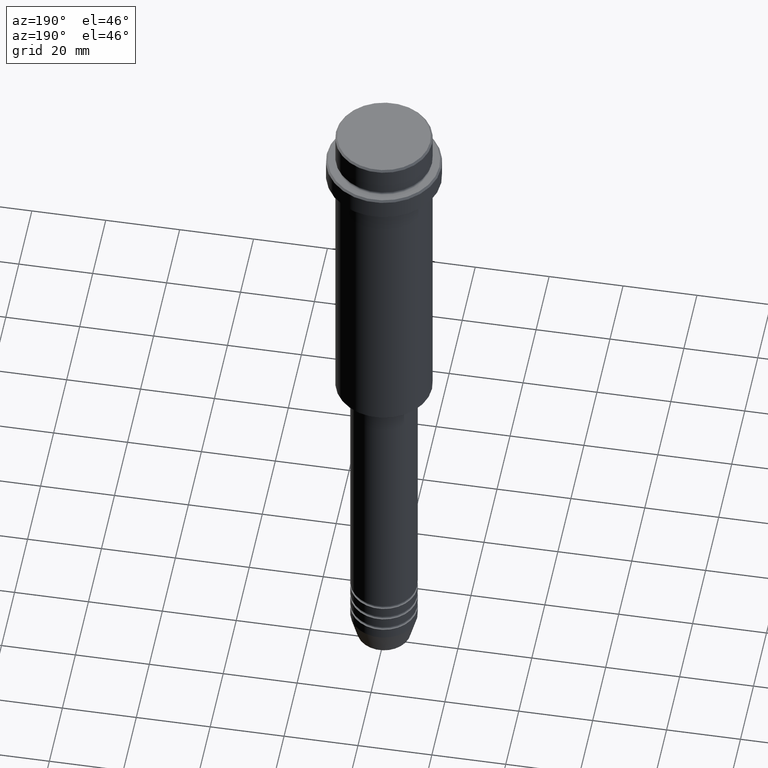
[diagram: clean part render]
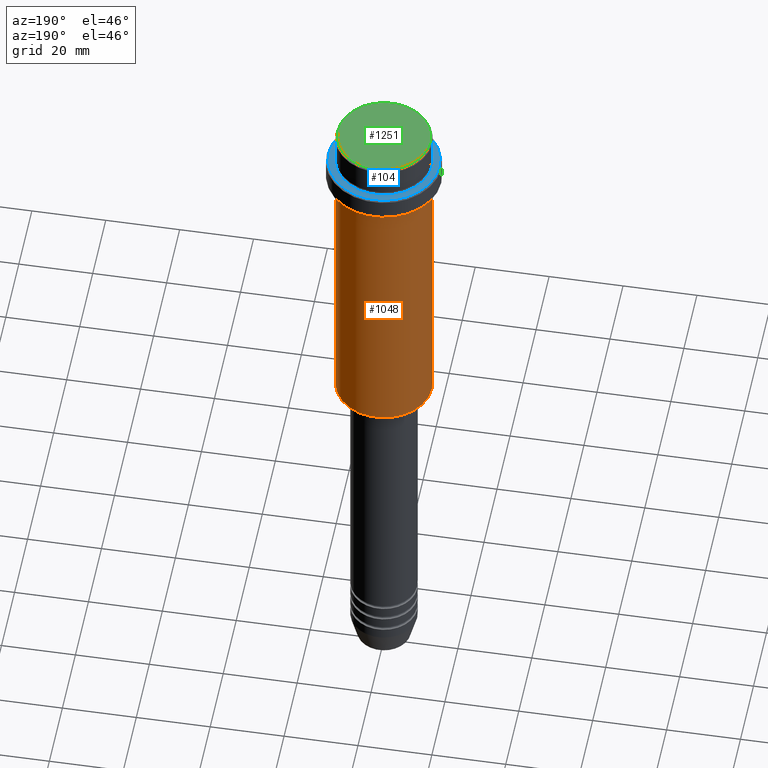
[diagram: same view with three faces highlighted in distinct colors, each labeled with its STEP entity id]
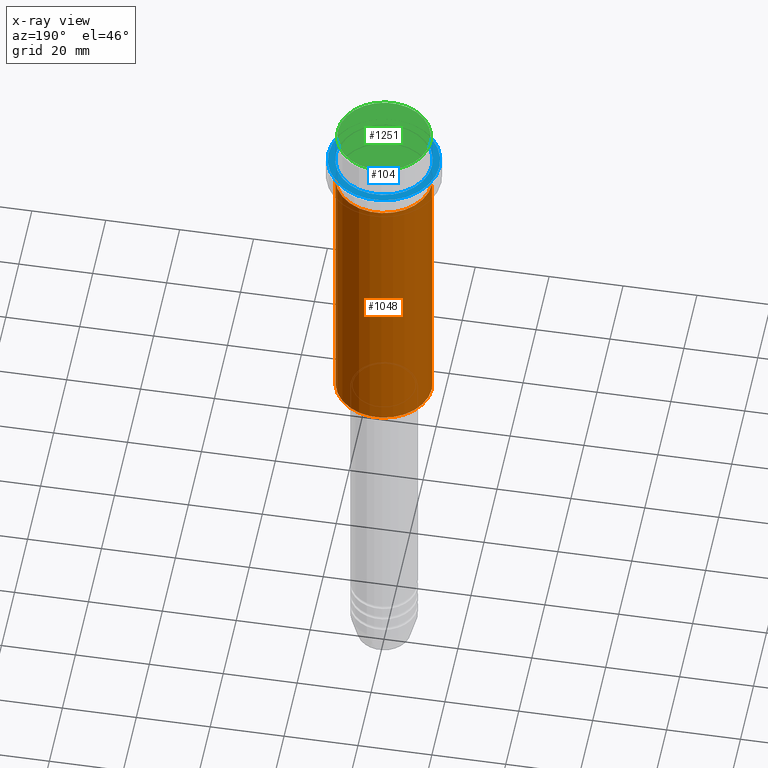
[diagram: x-ray of the same camera — body ghosted, the three highlighted faces saturated]
A machine part, auxiliary view with three faces highlighted in distinct colors.
The next image is the same camera in x-ray (body ghosted, the three faces saturated) — at least one of them is partly hidden behind the body in this view.
Their STEP definitions:

[orange] entity #1048 — the highlighted cylindrical surface (partial cylindrical patch) has radius 13 mm, axis along (-0, -0, 1).
#83 = LINE ( 'NONE', #88, #286 ) ;
#88 = CARTESIAN_POINT ( 'NONE',  ( -13.00000000000000000, 1.592040838891559095E-15, 0.000000000000000000 ) ) ;
#89 = DIRECTION ( 'NONE',  ( -0.000000000000000000, -0.000000000000000000, 1.000000000000000000 ) ) ;
#133 = VERTEX_POINT ( 'NONE', #332 ) ;
#142 = VECTOR ( 'NONE', #348, 1000.000000000000000 ) ;
#143 = AXIS2_PLACEMENT_3D ( 'NONE', #1096, #1002, #1115 ) ;
#151 = CARTESIAN_POINT ( 'NONE',  ( 0.000000000000000000, 0.000000000000000000, -94.49999999999997158 ) ) ;
#286 = VECTOR ( 'NONE', #637, 1000.000000000000000 ) ;
#306 = EDGE_LOOP ( 'NONE', ( #1099, #1311, #1194, #980 ) ) ;
#332 = CARTESIAN_POINT ( 'NONE',  ( 13.00000000000000000, 0.000000000000000000, -94.49999999999997158 ) ) ;
#348 = DIRECTION ( 'NONE',  ( -0.000000000000000000, -0.000000000000000000, 1.000000000000000000 ) ) ;
#364 = CARTESIAN_POINT ( 'NONE',  ( 13.00000000000000000, 0.000000000000000000, 0.000000000000000000 ) ) ;
#387 = VERTEX_POINT ( 'NONE', #935 ) ;
#437 = EDGE_CURVE ( 'NONE', #387, #548, #944, .T. ) ;
#497 = DIRECTION ( 'NONE',  ( -1.000000000000000000, 0.000000000000000000, 0.000000000000000000 ) ) ;
#539 = AXIS2_PLACEMENT_3D ( 'NONE', #1205, #89, #745 ) ;
#548 = VERTEX_POINT ( 'NONE', #1216 ) ;
#588 = CYLINDRICAL_SURFACE ( 'NONE', #143, 13.00000000000000000 ) ;
#589 = EDGE_CURVE ( 'NONE', #133, #387, #1004, .T. ) ;
#620 = CARTESIAN_POINT ( 'NONE',  ( -13.00000000000000000, 1.592040838891559095E-15, -94.49999999999997158 ) ) ;
#637 = DIRECTION ( 'NONE',  ( -0.000000000000000000, -0.000000000000000000, 1.000000000000000000 ) ) ;
#708 = VERTEX_POINT ( 'NONE', #620 ) ;
#745 = DIRECTION ( 'NONE',  ( 1.000000000000000000, 0.000000000000000000, 0.000000000000000000 ) ) ;
#900 = EDGE_CURVE ( 'NONE', #708, #548, #83, .T. ) ;
#904 = CIRCLE ( 'NONE', #967, 13.00000000000000000 ) ;
#935 = CARTESIAN_POINT ( 'NONE',  ( 13.00000000000000000, 0.000000000000000000, -16.00000000000000000 ) ) ;
#944 = CIRCLE ( 'NONE', #539, 13.00000000000000000 ) ;
#967 = AXIS2_PLACEMENT_3D ( 'NONE', #151, #1241, #497 ) ;
#969 = FACE_OUTER_BOUND ( 'NONE', #306, .T. ) ;
#980 = ORIENTED_EDGE ( 'NONE', *, *, #589, .F. ) ;
#1002 = DIRECTION ( 'NONE',  ( -0.000000000000000000, -0.000000000000000000, 1.000000000000000000 ) ) ;
#1004 = LINE ( 'NONE', #364, #142 ) ;
#1048 = ADVANCED_FACE ( 'NONE', ( #969 ), #588, .T. ) ;
#1096 = CARTESIAN_POINT ( 'NONE',  ( 0.000000000000000000, 0.000000000000000000, 0.000000000000000000 ) ) ;
#1099 = ORIENTED_EDGE ( 'NONE', *, *, #1188, .T. ) ;
#1115 = DIRECTION ( 'NONE',  ( 1.000000000000000000, 0.000000000000000000, 0.000000000000000000 ) ) ;
#1188 = EDGE_CURVE ( 'NONE', #133, #708, #904, .T. ) ;
#1194 = ORIENTED_EDGE ( 'NONE', *, *, #437, .F. ) ;
#1205 = CARTESIAN_POINT ( 'NONE',  ( 0.000000000000000000, 0.000000000000000000, -16.00000000000000000 ) ) ;
#1216 = CARTESIAN_POINT ( 'NONE',  ( -13.00000000000000000, 1.592040838891559095E-15, -16.00000000000000000 ) ) ;
#1241 = DIRECTION ( 'NONE',  ( -0.000000000000000000, -0.000000000000000000, 1.000000000000000000 ) ) ;
#1311 = ORIENTED_EDGE ( 'NONE', *, *, #900, .T. ) ;

[blue] entity #104 — the highlighted planar face has unit normal (0, -0, 1).
#20 = DIRECTION ( 'NONE',  ( 1.000000000000000000, 0.000000000000000000, 0.000000000000000000 ) ) ;
#81 = FACE_OUTER_BOUND ( 'NONE', #258, .T. ) ;
#104 = ADVANCED_FACE ( 'NONE', ( #81, #993 ), #634, .T. ) ;
#106 = DIRECTION ( 'NONE',  ( 1.000000000000000000, 0.000000000000000000, 0.000000000000000000 ) ) ;
#118 = DIRECTION ( 'NONE',  ( 1.000000000000000000, 0.000000000000000000, 0.000000000000000000 ) ) ;
#149 = CARTESIAN_POINT ( 'NONE',  ( 0.000000000000000000, 0.000000000000000000, -9.000000000000000000 ) ) ;
#163 = CIRCLE ( 'NONE', #1220, 14.99999999999998579 ) ;
#221 = EDGE_CURVE ( 'NONE', #1334, #1325, #643, .T. ) ;
#228 = VERTEX_POINT ( 'NONE', #479 ) ;
#230 = EDGE_LOOP ( 'NONE', ( #342, #880 ) ) ;
#237 = EDGE_CURVE ( 'NONE', #1325, #1334, #516, .T. ) ;
#238 = VERTEX_POINT ( 'NONE', #374 ) ;
#258 = EDGE_LOOP ( 'NONE', ( #1415, #1021 ) ) ;
#283 = CARTESIAN_POINT ( 'NONE',  ( 12.99999999999999467, 0.000000000000000000, -9.000000000000000000 ) ) ;
#342 = ORIENTED_EDGE ( 'NONE', *, *, #221, .T. ) ;
#374 = CARTESIAN_POINT ( 'NONE',  ( 14.99999999999998579, 1.867586368699712587E-15, -9.000000000000000000 ) ) ;
#381 = DIRECTION ( 'NONE',  ( -0.000000000000000000, -0.000000000000000000, 1.000000000000000000 ) ) ;
#425 = AXIS2_PLACEMENT_3D ( 'NONE', #1396, #845, #106 ) ;
#479 = CARTESIAN_POINT ( 'NONE',  ( -14.99999999999998579, 0.000000000000000000, -9.000000000000000000 ) ) ;
#513 = CARTESIAN_POINT ( 'NONE',  ( 0.000000000000000000, 0.000000000000000000, -9.000000000000000000 ) ) ;
#516 = CIRCLE ( 'NONE', #601, 12.99999999999999467 ) ;
#601 = AXIS2_PLACEMENT_3D ( 'NONE', #1025, #797, #20 ) ;
#634 = PLANE ( 'NONE',  #1196 ) ;
#643 = CIRCLE ( 'NONE', #1373, 12.99999999999999467 ) ;
#701 = DIRECTION ( 'NONE',  ( 0.000000000000000000, 0.000000000000000000, -1.000000000000000000 ) ) ;
#709 = CARTESIAN_POINT ( 'NONE',  ( -12.99999999999999467, 1.592040838891558504E-15, -9.000000000000000000 ) ) ;
#739 = CIRCLE ( 'NONE', #425, 14.99999999999998579 ) ;
#773 = EDGE_CURVE ( 'NONE', #228, #238, #163, .T. ) ;
#797 = DIRECTION ( 'NONE',  ( 0.000000000000000000, 0.000000000000000000, -1.000000000000000000 ) ) ;
#813 = DIRECTION ( 'NONE',  ( 1.000000000000000000, 0.000000000000000000, 0.000000000000000000 ) ) ;
#845 = DIRECTION ( 'NONE',  ( -0.000000000000000000, -0.000000000000000000, 1.000000000000000000 ) ) ;
#880 = ORIENTED_EDGE ( 'NONE', *, *, #237, .T. ) ;
#984 = DIRECTION ( 'NONE',  ( 0.000000000000000000, -0.000000000000000000, 1.000000000000000000 ) ) ;
#993 = FACE_BOUND ( 'NONE', #230, .T. ) ;
#999 = DIRECTION ( 'NONE',  ( 1.000000000000000000, 0.000000000000000000, 0.000000000000000000 ) ) ;
#1020 = EDGE_CURVE ( 'NONE', #238, #228, #739, .T. ) ;
#1021 = ORIENTED_EDGE ( 'NONE', *, *, #1020, .T. ) ;
#1025 = CARTESIAN_POINT ( 'NONE',  ( 0.000000000000000000, 0.000000000000000000, -9.000000000000000000 ) ) ;
#1196 = AXIS2_PLACEMENT_3D ( 'NONE', #1277, #984, #118 ) ;
#1220 = AXIS2_PLACEMENT_3D ( 'NONE', #513, #381, #813 ) ;
#1277 = CARTESIAN_POINT ( 'NONE',  ( 0.000000000000000000, 12.49999999999999289, -9.000000000000000000 ) ) ;
#1325 = VERTEX_POINT ( 'NONE', #709 ) ;
#1334 = VERTEX_POINT ( 'NONE', #283 ) ;
#1373 = AXIS2_PLACEMENT_3D ( 'NONE', #149, #701, #999 ) ;
#1396 = CARTESIAN_POINT ( 'NONE',  ( 0.000000000000000000, 0.000000000000000000, -9.000000000000000000 ) ) ;
#1415 = ORIENTED_EDGE ( 'NONE', *, *, #773, .T. ) ;

[green] entity #1251 — the highlighted planar face has unit normal (0, -0, 1).
#44 = CARTESIAN_POINT ( 'NONE',  ( 12.50000000000004086, 1.561424668912877675E-15, 0.000000000000000000 ) ) ;
#58 = DIRECTION ( 'NONE',  ( 1.000000000000000000, 0.000000000000000000, 0.000000000000000000 ) ) ;
#65 = PLANE ( 'NONE',  #353 ) ;
#353 = AXIS2_PLACEMENT_3D ( 'NONE', #598, #606, #58 ) ;
#384 = EDGE_CURVE ( 'NONE', #1149, #1224, #1179, .T. ) ;
#392 = EDGE_LOOP ( 'NONE', ( #1033, #1003 ) ) ;
#546 = DIRECTION ( 'NONE',  ( 1.000000000000000000, 0.000000000000000000, 0.000000000000000000 ) ) ;
#598 = CARTESIAN_POINT ( 'NONE',  ( 0.000000000000000000, 0.000000000000000000, 0.000000000000000000 ) ) ;
#606 = DIRECTION ( 'NONE',  ( 0.000000000000000000, -0.000000000000000000, 1.000000000000000000 ) ) ;
#712 = DIRECTION ( 'NONE',  ( -0.000000000000000000, -0.000000000000000000, 1.000000000000000000 ) ) ;
#759 = CIRCLE ( 'NONE', #807, 12.50000000000004086 ) ;
#800 = FACE_OUTER_BOUND ( 'NONE', #392, .T. ) ;
#807 = AXIS2_PLACEMENT_3D ( 'NONE', #959, #1092, #546 ) ;
#954 = CARTESIAN_POINT ( 'NONE',  ( 0.000000000000000000, 0.000000000000000000, 0.000000000000000000 ) ) ;
#959 = CARTESIAN_POINT ( 'NONE',  ( 0.000000000000000000, 0.000000000000000000, 0.000000000000000000 ) ) ;
#982 = EDGE_CURVE ( 'NONE', #1224, #1149, #759, .T. ) ;
#1003 = ORIENTED_EDGE ( 'NONE', *, *, #982, .T. ) ;
#1033 = ORIENTED_EDGE ( 'NONE', *, *, #384, .T. ) ;
#1036 = AXIS2_PLACEMENT_3D ( 'NONE', #954, #712, #1158 ) ;
#1092 = DIRECTION ( 'NONE',  ( -0.000000000000000000, -0.000000000000000000, 1.000000000000000000 ) ) ;
#1130 = CARTESIAN_POINT ( 'NONE',  ( -12.50000000000004086, 0.000000000000000000, 0.000000000000000000 ) ) ;
#1149 = VERTEX_POINT ( 'NONE', #1130 ) ;
#1158 = DIRECTION ( 'NONE',  ( 1.000000000000000000, 0.000000000000000000, 0.000000000000000000 ) ) ;
#1179 = CIRCLE ( 'NONE', #1036, 12.50000000000004086 ) ;
#1224 = VERTEX_POINT ( 'NONE', #44 ) ;
#1251 = ADVANCED_FACE ( 'NONE', ( #800 ), #65, .T. ) ;